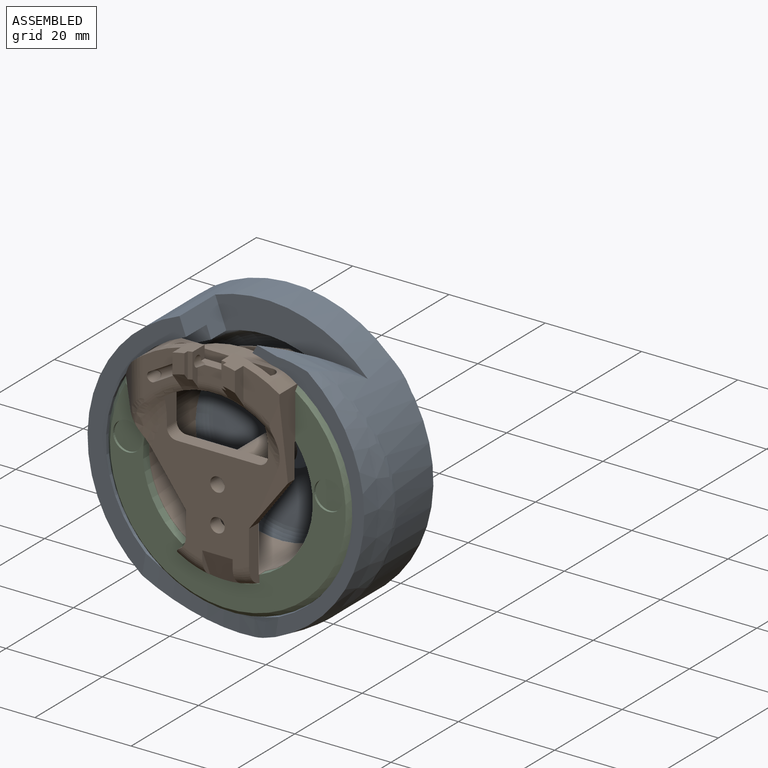
[diagram: assembled view]
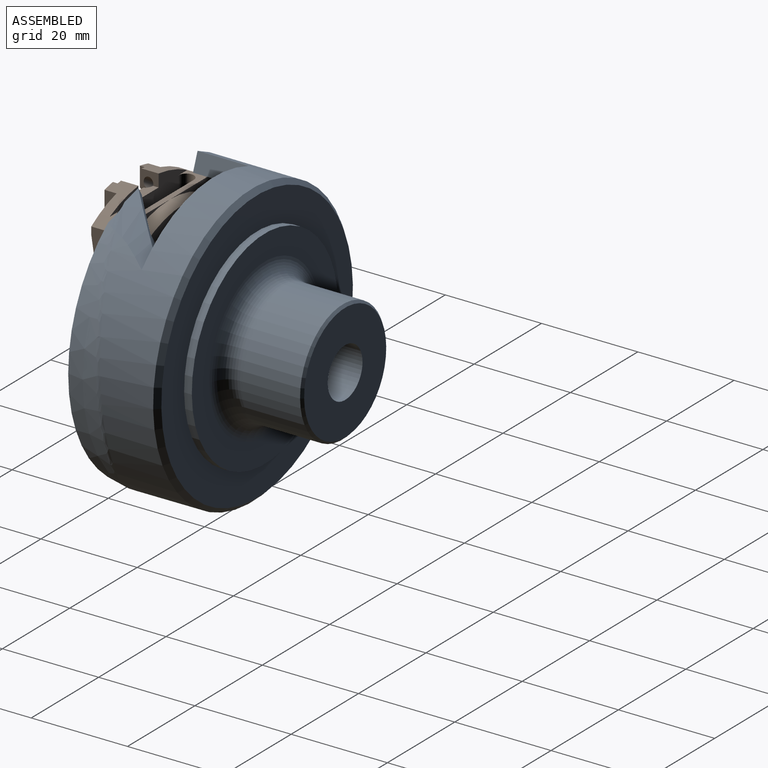
[diagram: assembled view, second angle]
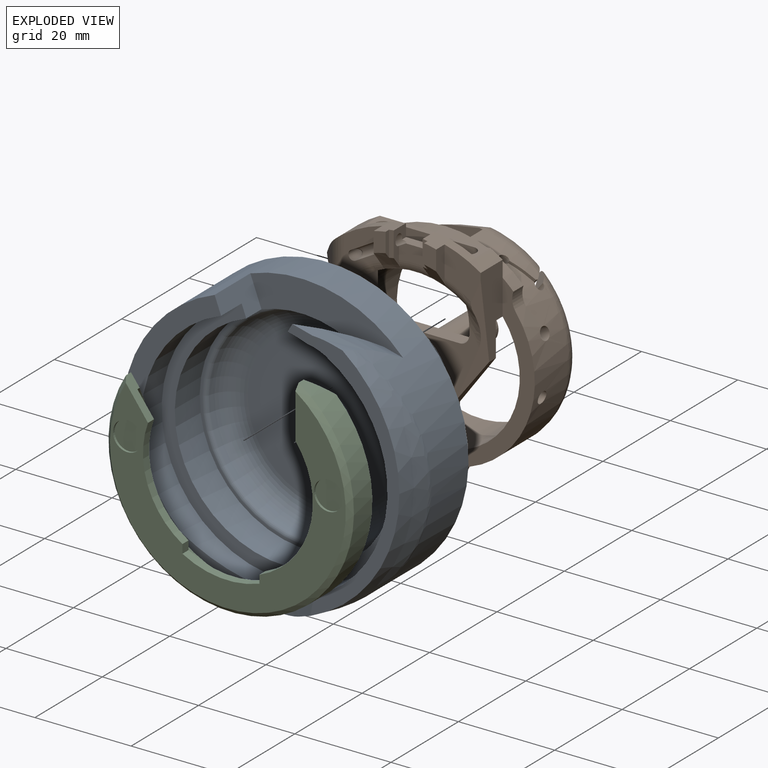
[diagram: exploded view]
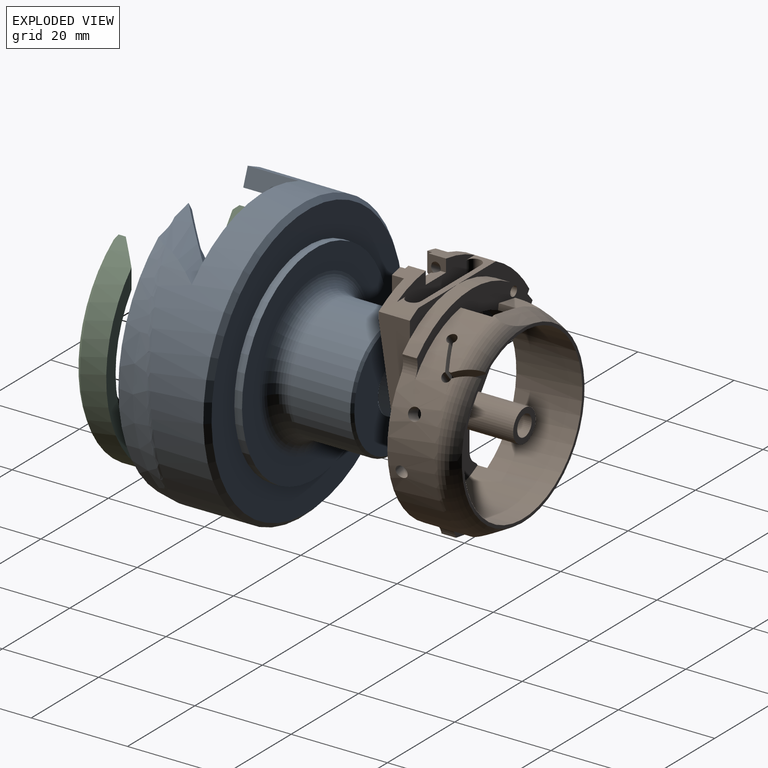
[diagram: exploded view, second angle]
ASSEMBLY  parts=3 mates=2
PART A: 28 faces, bbox 58.9x38.9x58.9 mm
  f0: plane 4.98x2.41mm, normal (0,-1,0), area 8.4mm2, adj f4,f21,f24,f26
  f1: cylinder r=29.43mm len=58.85mm, axis (0,1,0), area 2689.7mm2, adj f3,f11,f20,f23,f25,f26,f27
  f2: plane 52.19x19.29mm, normal (0,-1,0), area 171.5mm2, adj f4,f20,f21,f22,f26
  f3: plane 51.36x16.63mm, normal (0,-1,0), area 219.3mm2, adj f1,f4,f20,f25
  f4: cylinder r=25.6mm len=51.2mm, axis (0,-1,0), area 837.7mm2, adj f0,f2,f3,f14,f20,f21,f24,f25
  f5: plane 43.33x43.33mm, normal (0,1,0), area 631.7mm2, adj f6,f10
  f6: cylinder r=21.66mm len=43.33mm, axis (0,1,0), area 217.8mm2, adj f5,f7
  f7: plane 56.85x56.85mm, normal (0,1,0), area 1063.8mm2, adj f6,f11
  f8: plane 24.36x24.36mm, normal (0,1,0), area 382.7mm2, adj f12,f15
  f9: cylinder r=12.68mm len=25.36mm, axis (0,1,0), area 995.9mm2, adj f10,f12
  f10: torus R=16.38mm, axis (0,1,0), area 512.1mm2, adj f5,f9
  f11: cone r=28.42mm half-angle=45deg, axis (0,-1,0), area 257mm2, adj f1,f7
  f12: cone r=12.18mm half-angle=45deg, axis (0,-1,0), area 55.2mm2, adj f8,f9
  f13: cylinder r=22.86mm len=45.73mm, axis (0,-1,0), area 957.5mm2, adj f14,f18,f23,f24,f25
  f14: plane 51.2x49.73mm, normal (0,-1,0), area 359.2mm2, adj f4,f13,f24,f25
  f15: cylinder r=5.15mm len=19.4mm, axis (0,-1,0), area 627.8mm2, adj f8,f16
  f16: plane 32.8x32.8mm, normal (0,-1,0), area 761.7mm2, adj f15,f17
  f17: torus R=16.4mm, axis (0,-1,0), area 858.5mm2, adj f16,f19
  f18: plane 45.73x45.73mm, normal (0,-1,0), area 77mm2, adj f13,f19
  f19: torus R=22.32mm, axis (0,1,0), area 192.5mm2, adj f17,f18
  f20: cylinder r=58.5mm len=28mm, axis (-1,0,0), area 112.6mm2, adj f1,f2,f3,f4,f22,f27
  f21: cylinder r=10mm len=4.4mm, axis (-0.94,0,0.34), area 9.2mm2, adj f0,f2,f4,f26
  f22: cone r=29.93mm half-angle=10.6deg, axis (0,1,0), area 322.2mm2, adj f2,f20,f26,f27
  f23: plane 32.53x10.02mm, normal (0,-1,0), area 185.2mm2, adj f1,f13,f24,f25,f26
  f24: plane 12.72x11.34mm, normal (-0.24,0.74,-0.63), area 49.8mm2, adj f0,f4,f13,f14,f23,f26
  f25: plane 10.6x5.68mm, normal (-0.5,0,0.87), area 52.9mm2, adj f1,f3,f4,f13,f14,f23
  f26: bspline ~22.89x11.25mm, area 73.8mm2, adj f0,f1,f2,f21,f22,f23,f24,f27
  f27: bspline ~56.34x22.72mm, area 66.5mm2, adj f1,f20,f22,f26
PART B: 99 faces, bbox 45.7x24.1x49 mm
  f0: cylinder r=20.7mm len=40.94mm, axis (0,1,0), area 463.2mm2, adj f3,f4,f6,f7,f11,f43,f44,f81
  f1: cylinder r=17.57mm len=35.15mm, axis (0,1,0), area 1486.7mm2, adj f2,f5,f6,f11,f14,f15,f26,f27
  f2: cylinder r=17.57mm len=7.06mm, axis (0,1,0), area 26mm2, adj f1,f5,f92,f93,f98
  f3: torus R=16.2mm, axis (0,1,0), area 185.2mm2, adj f0,f5,f44,f97
  f4: torus R=16.2mm, axis (0,1,0), area 60.8mm2, adj f0,f5,f43,f98
  f5: plane 36.44x36.44mm, normal (0,1,0), area 72mm2, adj f1,f2,f3,f4,f13,f97,f98
  f6: plane 34.88x12.34mm, normal (0,1,0), area 114.4mm2, adj f0,f1,f12,f13,f40,f74,f80,f81
  f7: plane 14.25x3.29mm, normal (0,1,0), area 21.5mm2, adj f0,f9,f13,f87,f89
  f8: plane 9.55x4.42mm, normal (0,1,0), area 12.6mm2, adj f10,f13,f74,f85
  f9: cylinder r=22.72mm len=9.22mm, axis (0,1,0), area 27.9mm2, adj f7,f11,f87,f89
  f10: cylinder r=22.72mm len=4.69mm, axis (0,1,0), area 14.7mm2, adj f8,f11,f74,f85
  f11: plane 43.03x40.63mm, normal (0,-1,0), area 272.2mm2, adj f0,f1,f9,f10,f14,f15,f38,f40
  f12: cylinder r=1mm len=9.5mm, axis (0,-1,0), area 56.7mm2, adj f6,f22,f67
  f13: revolved ~41.08x24.29mm, area 630.9mm2, adj f5,f6,f7,f8,f43,f44,f80,f82
  f14: plane 17.68x6.5mm, normal (1,0,0), area 80.4mm2, adj f1,f11,f17,f25,f29,f46,f60,f73
  f15: cylinder r=3mm len=4.74mm, axis (0,1,0), area 8.5mm2, adj f1,f11,f32,f41,f42,f73
  f16: cylinder r=25.48mm len=18.45mm, axis (0,1,0), area 93.2mm2, adj f19,f20,f22,f24,f45,f48,f53,f61
  f17: cylinder r=25.48mm len=11mm, axis (0,1,0), area 45.4mm2, adj f14,f21,f25,f29,f37,f47,f53,f61
  f18: cone r=18.47mm half-angle=50.5deg, axis (0,-1,0), area 12.7mm2, adj f21,f34,f37,f47,f68,f69
  f19: plane 4.66x2.5mm, normal (0,-1,0), area 10.2mm2, adj f16,f36,f48,f70
  f20: plane 7.75x3.61mm, normal (1,0,0), area 11.8mm2, adj f16,f23,f34,f36,f49,f53,f66,f71
  f21: plane 7.75x3.61mm, normal (-1,0,0), area 14.8mm2, adj f17,f18,f23,f34,f49,f53,f68,f72
  f22: plane 11.54x7.88mm, normal (0,-1,0), area 39.1mm2, adj f12,f16,f35,f48,f62,f66
  f23: plane 6x3.46mm, normal (0,-1,0), area 19.2mm2, adj f20,f21,f49,f66,f72
  f24: plane 21.45x13.04mm, normal (0,1,0), area 51.5mm2, adj f16,f40,f45,f61,f74
  f25: plane 14x4.82mm, normal (0,1,0), area 19.7mm2, adj f14,f17,f40,f61
  f26: plane 17.8x7.57mm, normal (0,-1,0), area 105.6mm2, adj f1,f27,f28,f61
  f27: cylinder r=1.6mm len=8.63mm, axis (0,0,-1), area 40.7mm2, adj f1,f26,f33,f53,f61
  f28: cylinder r=1.6mm len=8.63mm, axis (0,0,-1), area 40.7mm2, adj f1,f26,f33,f53,f61
  f29: plane 9.36x7.5mm, normal (0,-1,0), area 45.5mm2, adj f14,f17,f30,f47,f60
  f30: torus R=19.45mm, axis (0,-1,0), area 11.5mm2, adj f29,f34,f47,f60
  f31: plane 26.22x24.16mm, normal (0,-1,0), area 348.4mm2, adj f32,f34,f38,f39,f42,f45,f46,f50
  f32: torus R=15.2mm, axis (0,-1,0), area 72mm2, adj f15,f31,f38,f41,f42,f54,f55,f56
  f33: cylinder r=17.57mm len=21mm, axis (0,1,0), area 36.1mm2, adj f27,f28,f34,f50,f52,f53
  f34: torus R=14.02mm, axis (0,1,0), area 53.2mm2, adj f18,f20,f21,f30,f31,f33,f35,f36
  f35: torus R=19.45mm, axis (0,-1,0), area 15.2mm2, adj f22,f34,f48,f64
  f36: cone r=18.47mm half-angle=50.5deg, axis (0,-1,0), area 12.7mm2, adj f19,f20,f34,f48,f70,f71
  f37: plane 4.66x2.5mm, normal (0,-1,0), area 10.2mm2, adj f17,f18,f47,f69
  f38: plane 12.38x5.77mm, normal (1,0,0), area 33.2mm2, adj f1,f11,f31,f32,f41,f46,f73
  f39: plane 5.12x2.9mm, normal (-1,0,0), area 14.8mm2, adj f31,f42,f45,f73
  f40: cylinder r=22.72mm len=34.37mm, axis (0,1,0), area 117.2mm2, adj f6,f11,f24,f25,f74,f88
  f41: cylinder r=19.2mm len=16mm, axis (0,1,0), area 14.9mm2, adj f11,f15,f32,f38
  f42: cylinder r=3mm len=2.9mm, axis (0,1,0), area 8.8mm2, adj f15,f31,f32,f39,f73
  f43: cylinder r=24.43mm len=6.97mm, axis (-0.98,0,-0.17), area 26.8mm2, adj f0,f4,f13,f82
  f44: cylinder r=24.43mm len=10.72mm, axis (-0.98,0,-0.17), area 34.2mm2, adj f0,f3,f13
  f45: plane 20.63x15.24mm, normal (-0.81,0,-0.59), area 83.4mm2, adj f1,f11,f16,f24,f31,f34,f39,f63
  f46: plane 10.14x7.45mm, normal (0.81,0,-0.59), area 31.5mm2, adj f14,f31,f38,f60,f73
  f47: plane 8.12x3.06mm, normal (1,0,0), area 14.4mm2, adj f17,f18,f29,f30,f34,f37
  f48: plane 8.28x3.22mm, normal (-1,0,0), area 12.6mm2, adj f16,f19,f22,f34,f35,f36,f66
  f49: torus R=19.45mm, axis (0,-1,0), area 10.4mm2, adj f20,f21,f23,f34
  f50: plane 6.59x4.37mm, normal (1,0,0), area 19.1mm2, adj f1,f31,f33,f34,f57,f73
  f51: plane 17x2.9mm, normal (0,0,1), area 49.3mm2, adj f31,f57,f58,f73
  f52: plane 6.59x4.37mm, normal (-1,0,0), area 19.1mm2, adj f1,f31,f33,f34,f58,f73
  f53: plane 23.03x10.14mm, normal (0,1,0), area 131.9mm2, adj f16,f17,f20,f21,f27,f28,f33,f61
  f54: plane 6.3x5.7mm, normal (0,-0.92,-0.4), area 38.4mm2, adj f31,f32,f55,f56
  f55: plane 5.57x2.53mm, normal (1,0,0), area 3.8mm2, adj f31,f32,f54
  f56: plane 5.57x2.53mm, normal (-1,0,0), area 3.8mm2, adj f31,f32,f54
  f57: cylinder r=2mm len=2.9mm, axis (0,1,0), area 9.1mm2, adj f31,f50,f51,f73
  f58: cylinder r=2mm len=2.9mm, axis (0,1,0), area 9.1mm2, adj f31,f51,f52,f73
  f59: cylinder r=1.5mm len=3mm, axis (0,1,0), area 27.3mm2, adj f31,f73
  f60: plane 25.32x6.83mm, normal (0.33,-0.93,-0.15), area 35.7mm2, adj f14,f29,f30,f31,f34,f46
  f61: plane 23.03x4.4mm, normal (0,0,1), area 36.3mm2, adj f16,f17,f24,f25,f26,f27,f28,f53
  f62: cylinder r=5mm len=11.57mm, axis (0,0,-1), area 32.6mm2, adj f16,f22,f63,f64
  f63: plane 9.33x3.78mm, normal (-0.71,-0.71,0), area 23.8mm2, adj f16,f45,f62,f65
  f64: bspline ~5.05x4.75mm, area 11.9mm2, adj f34,f35,f62,f65
  f65: bspline ~6.23x3.99mm, area 6.8mm2, adj f34,f45,f63,f64
  f66: cylinder r=1mm len=11.46mm, axis (-0.87,0,-0.5), area 45.3mm2, adj f20,f22,f23,f48,f67,f72
  f67: bspline ~2.01x1.89mm, area 0mm2, adj f12,f66
  f68: plane 5.4x1mm, normal (0,-1,0), area 5.2mm2, adj f17,f18,f21,f69
  f69: plane 5.27x1.01mm, normal (-1,0,0), area 4.6mm2, adj f17,f18,f37,f68
  f70: plane 5.27x1.01mm, normal (1,0,0), area 4.6mm2, adj f16,f19,f36,f71
  f71: plane 5.4x1mm, normal (0,-1,0), area 5.2mm2, adj f16,f20,f36,f70
  f72: plane 6.57x2.67mm, normal (0,0,1), area 11.6mm2, adj f20,f21,f23,f53,f66
  f73: plane 31.67x30.26mm, normal (0,1,0), area 432.5mm2, adj f1,f14,f15,f38,f39,f42,f45,f46
  f74: cylinder r=3mm len=4.82mm, axis (0,1,0), area 21.2mm2, adj f6,f8,f10,f11,f24,f40
  f75: cylinder r=2.15mm len=16mm, axis (0,-1,0), area 216.1mm2, adj f77,f78
  f76: cylinder r=3.35mm len=16mm, axis (0,-1,0), area 336.8mm2, adj f73,f77
  f77: plane 6.7x6.7mm, normal (0,1,0), area 20.7mm2, adj f75,f76
  f78: plane 4.3x4.3mm, normal (0,1,0), area 7.5mm2, adj f75,f79
  f79: cylinder r=1.5mm len=3mm, axis (0,1,0), area 27.3mm2, adj f31,f78
  f80: plane 7.45x5.87mm, normal (-0.17,0,0.98), area 28.4mm2, adj f6,f13,f82,f84
  f81: plane 6.5x1.73mm, normal (-0.77,0,0.63), area 14.6mm2, adj f0,f6,f82,f83
  f82: plane 14.24x4.83mm, normal (0,-1,0), area 27.1mm2, adj f0,f1,f13,f43,f80,f81,f83,f84
  f83: plane 6.5x1.26mm, normal (-0.98,0,-0.17), area 8.3mm2, adj f1,f6,f81,f82
  f84: plane 6.5x1.26mm, normal (0.98,0,0.17), area 8.3mm2, adj f1,f6,f80,f82
  f85: cylinder r=4mm len=3.4mm, axis (0,1,0), area 11.8mm2, adj f8,f10,f11,f86
  f86: cylinder r=20.7mm len=20.27mm, axis (0,1,0), area 78.2mm2, adj f11,f13,f85,f87
  f87: cylinder r=4mm len=3mm, axis (0,1,0), area 11.8mm2, adj f7,f9,f11,f86
  f88: cylinder r=4mm len=3.74mm, axis (0,1,0), area 11.8mm2, adj f0,f6,f11,f40
  f89: cylinder r=4mm len=3mm, axis (0,1,0), area 11.8mm2, adj f0,f7,f9,f11
  f90: cylinder r=1.25mm len=3.55mm, axis (0.98,0,-0.19), area 24.6mm2, adj f0,f1
  f91: cylinder r=1.3mm len=3.83mm, axis (0.94,0,0.34), area 25.6mm2, adj f0,f1
  f92: cylinder r=1mm len=2.52mm, axis (0.63,0,0.78), area 1.4mm2, adj f0,f2,f93,f98
  f93: plane 6.09x5.73mm, normal (0.28,-0.93,-0.23), area 17.6mm2, adj f0,f2,f92,f94
  f94: cylinder r=1mm len=4.03mm, axis (0.63,0,0.78), area 18.6mm2, adj f0,f1,f93,f95
  f95: plane 6.05x5.79mm, normal (-0.28,0.93,0.23), area 17.6mm2, adj f0,f1,f94,f96
  f96: cylinder r=1mm len=3.67mm, axis (0.63,0,0.78), area 12.5mm2, adj f0,f1,f95,f97
  f97: plane 4.42x4.08mm, normal (-0.67,-0.52,0.54), area 11.5mm2, adj f0,f1,f3,f5,f96
  f98: plane 4.9x4.32mm, normal (0.67,0.52,-0.54), area 13.5mm2, adj f0,f2,f4,f5,f92
PART C: 19 faces, bbox 51.1x6.6x46.9 mm
  f0: plane 49x44.61mm, normal (0,-1,0), area 558.2mm2, adj f3,f4,f7,f8,f9,f10,f11,f12
  f1: plane 51x43.56mm, normal (0,1,0), area 280.6mm2, adj f2,f6,f17,f18
  f2: cylinder r=25.5mm len=51mm, axis (0,1,0), area 632.5mm2, adj f1,f7,f8,f9,f17,f18
  f3: cylinder r=17.64mm len=20.86mm, axis (0,1,0), area 42.9mm2, adj f0,f5,f8,f10
  f4: cylinder r=17.64mm len=27.11mm, axis (0,1,0), area 58.6mm2, adj f0,f5,f9,f12
  f5: plane 45.45x40.63mm, normal (0,1,0), area 422.6mm2, adj f3,f4,f6,f8,f9,f10,f11,f12
  f6: cylinder r=22.72mm len=45.45mm, axis (0,1,0), area 461.4mm2, adj f1,f5,f8,f9,f17,f18
  f7: cone r=25.5mm half-angle=45deg, axis (0,1,0), area 164.4mm2, adj f0,f2,f8,f9
  f8: plane 7.17x5.27mm, normal (0.81,0,0.59), area 17.5mm2, adj f0,f2,f3,f5,f6,f7,f17
  f9: plane 10.6x2.49mm, normal (-1,0,0), area 20.7mm2, adj f0,f2,f4,f5,f6,f7,f18
  f10: plane 1.82x1.8mm, normal (1,0,0), area 3.3mm2, adj f0,f3,f5,f11
  f11: cylinder r=19.2mm len=16mm, axis (0,-1,0), area 29.8mm2, adj f0,f5,f10,f12
  f12: plane 1.8x1.67mm, normal (-1,0,0), area 3mm2, adj f0,f4,f5,f11
  f13: cylinder r=3mm len=6mm, axis (0,-1,0), area 9.4mm2, adj f0,f14
  f14: plane 6x6mm, normal (0,-1,0), area 28.3mm2, adj f13
  f15: cylinder r=3mm len=6mm, axis (0,-1,0), area 9.4mm2, adj f0,f16
  f16: plane 6x6mm, normal (0,-1,0), area 28.3mm2, adj f15
  f17: plane 6.9x4.09mm, normal (0.57,0.71,0.42), area 18.1mm2, adj f1,f2,f6,f8
  f18: plane 7.44x4mm, normal (-0.71,0.71,0), area 21.2mm2, adj f1,f2,f6,f9
PLACE A rot(axis=(0,1,0),99.5deg) t=(9.55,1.91,-3.31)mm
PLACE B t=(9.55,1.91,-3.31)mm fixed
PLACE C t=(9.55,1.91,-3.31)mm
MATE fastened C.f7 <-> B.f0  axis (0,1,0) through (9.55,-34.56,-3.31)mm
MATE revolute A.f1 <-> C.f7  axis (0,-1,0) through (9.55,-29.89,-3.31)mm
